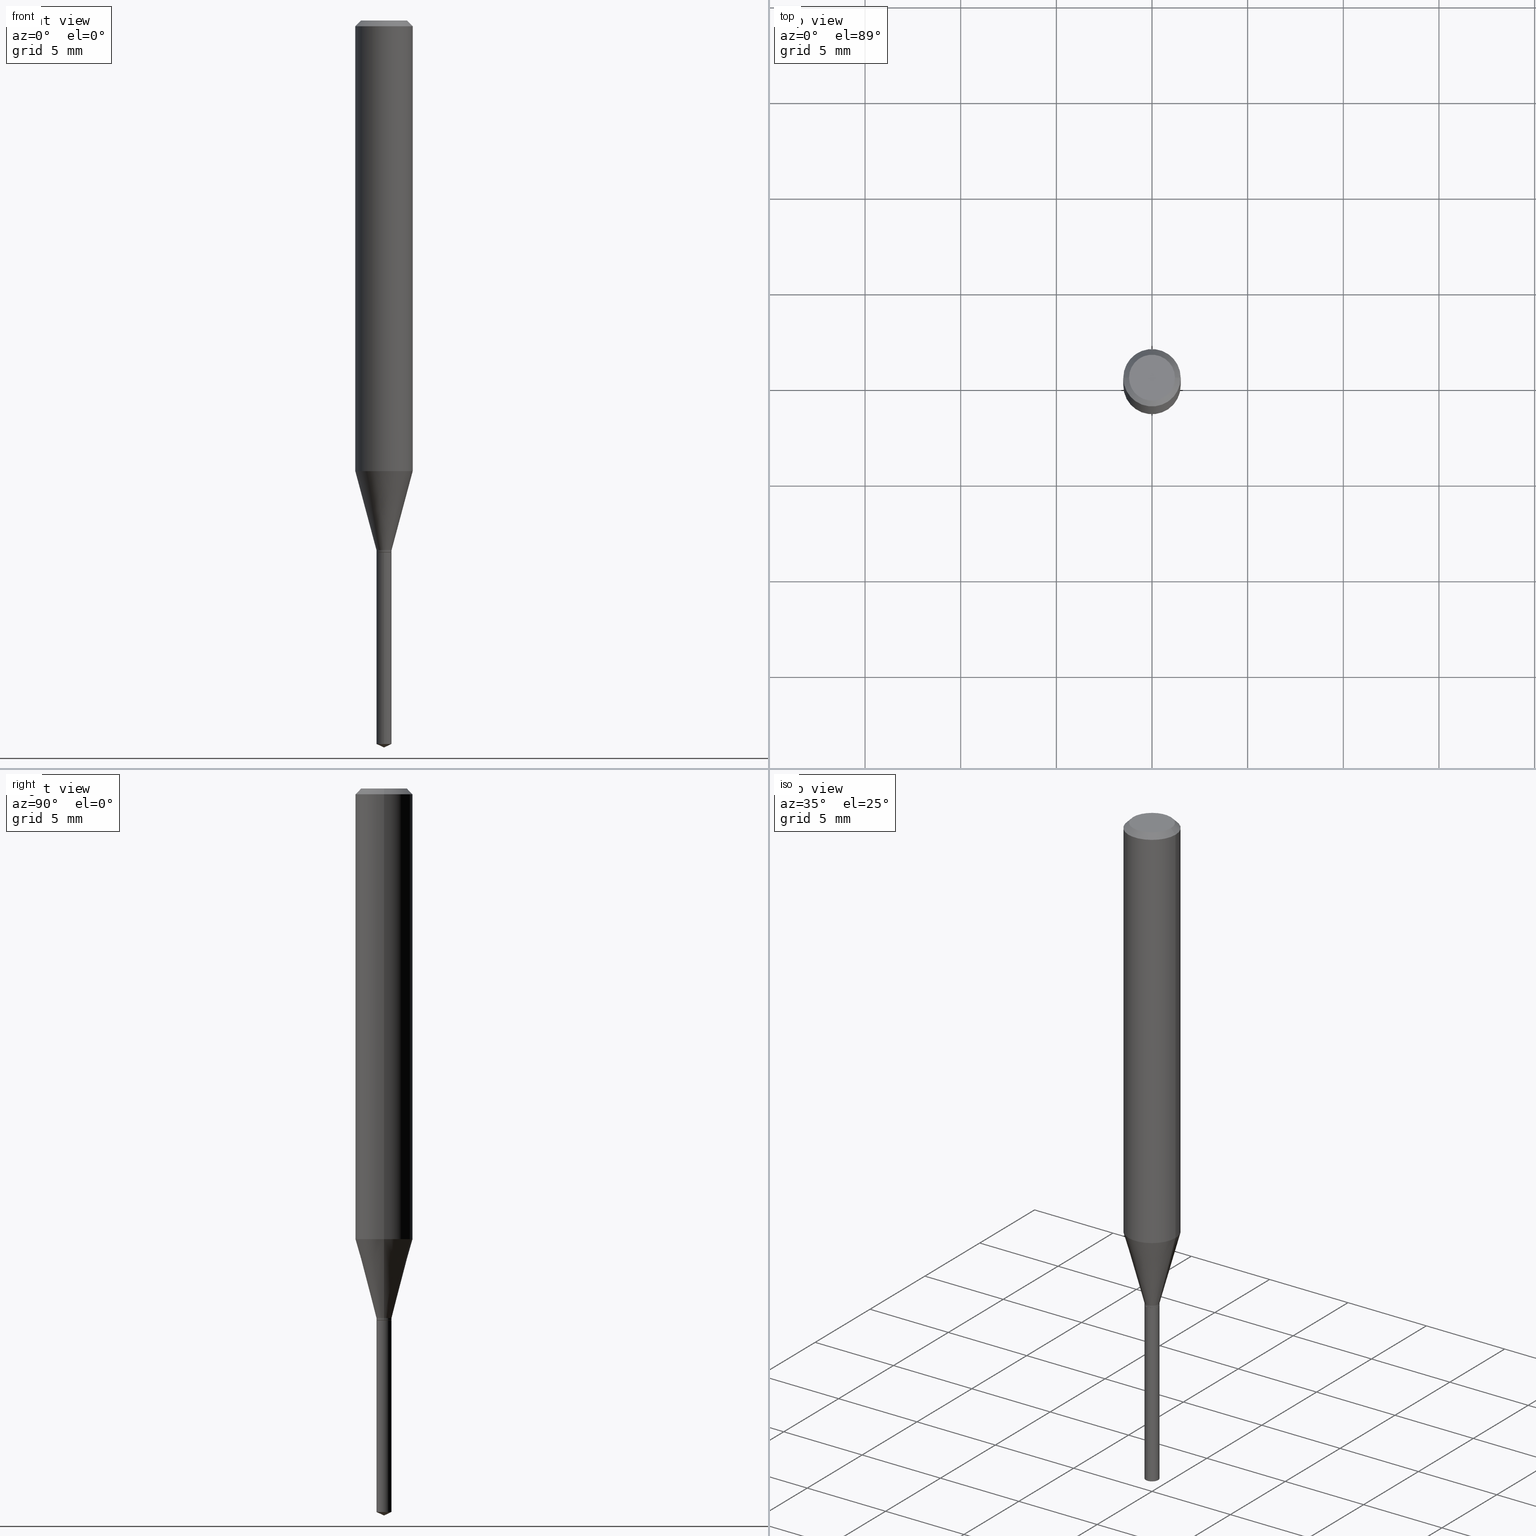
[diagram: canonical four-view strip — front | top / right | iso, engineering-drawing reading convention]
A machine part, canonical four-view strip (front | top / right | iso — engineering-drawing reading convention). The complete STEP part file that produces these views, byte-faithful:
ISO-10303-21;
HEADER;
FILE_DESCRIPTION (( 'STEP AP203' ),
    '1' );
FILE_NAME ('07455.STEP',
    '2024-04-23T21:38:01',
    ( '' ),
    ( '' ),
    'SwSTEP 2.0',
    'SolidWorks 2023',
    '' );
FILE_SCHEMA (( 'CONFIG_CONTROL_DESIGN' ));
ENDSEC;

DATA;
#1 = DIRECTION ( 'NONE',  ( 1.000000000000000000, -6.982962677686261189E-15, 0.000000000000000000 ) ) ;
#2 = CARTESIAN_POINT ( 'NONE',  ( -0.05905000000000005383, 4.195754854663395423E-16, -2.904631170795524694E-30 ) ) ;
#3 = ORIENTED_EDGE ( 'NONE', *, *, #465, .T. ) ;
#4 = CIRCLE ( 'NONE', #17, 0.01554999999999999959 ) ;
#5 = APPROVAL_STATUS ( 'not_yet_approved' ) ;
#6 = EDGE_LOOP ( 'NONE', ( #108, #396 ) ) ;
#7 = DATE_AND_TIME ( #435, #316 ) ;
#8 = DIRECTION ( 'NONE',  ( 1.000000000000000000, -6.982962677686266711E-15, 4.876185090822587894E-29 ) ) ;
#9 = CARTESIAN_POINT ( 'NONE',  ( 1.104893954107223233E-16, 0.01554999999999617626, -1.094499999999999806 ) ) ;
#10 = ADVANCED_FACE ( 'NONE', ( #224 ), #309, .T. ) ;
#11 = CIRCLE ( 'NONE', #239, 0.01504999999999999914 ) ;
#12 = DIRECTION ( 'NONE',  ( 1.000000000000000000, -6.982962677686266711E-15, 4.876176775795935793E-29 ) ) ;
#13 = CARTESIAN_POINT ( 'NONE',  ( 2.676565608369631794E-29, -3.821426325363822773E-15, -1.094499999999999806 ) ) ;
#14 = DIRECTION ( 'NONE',  ( -2.445468806185136597E-29, 3.491481338843145583E-15, 1.000000000000000000 ) ) ;
#15 = CARTESIAN_POINT ( 'NONE',  ( 1.104893954107319992E-16, 0.01554999999999480235, -1.488848915915689686 ) ) ;
#16 = ORIENTED_EDGE ( 'NONE', *, *, #289, .F. ) ;
#17 = AXIS2_PLACEMENT_3D ( 'NONE', #164, #421, #234 ) ;
#18 = CARTESIAN_POINT ( 'NONE',  ( -0.01554999999999999959, -3.701859078472134923E-15, -1.093999999999999861 ) ) ;
#19 = EDGE_LOOP ( 'NONE', ( #474, #64 ) ) ;
#20 = CYLINDRICAL_SURFACE ( 'NONE', #360, 0.01554999999999999959 ) ;
#21 = CARTESIAN_POINT ( 'NONE',  ( 2.676565608369631794E-29, -3.821426325363822773E-15, -1.094499999999999806 ) ) ;
#22 = ORIENTED_EDGE ( 'NONE', *, *, #77, .F. ) ;
#23 = DIRECTION ( 'NONE',  ( -2.445468806185136597E-29, 3.491481338843145583E-15, 1.000000000000000000 ) ) ;
#24 = ADVANCED_FACE ( 'NONE', ( #66 ), #29, .T. ) ;
#25 = DIRECTION ( 'NONE',  ( -2.445468806185136597E-29, 3.491481338843145583E-15, 1.000000000000000000 ) ) ;
#26 = ORIENTED_EDGE ( 'NONE', *, *, #67, .F. ) ;
#27 = LINE ( 'NONE', #413, #350 ) ;
#28 = FACE_OUTER_BOUND ( 'NONE', #284, .T. ) ;
#29 = CONICAL_SURFACE ( 'NONE', #225, 0.05904999999999999832, 0.7853981633974452814 ) ;
#30 = LOCAL_TIME ( 17, 38, 1.000000000000000000, #355 ) ;
#31 =( LENGTH_UNIT ( ) NAMED_UNIT ( * ) SI_UNIT ( $, .METRE. ) );
#32 = DIRECTION ( 'NONE',  ( -1.000000000000000000, 6.982962677686266711E-15, 0.000000000000000000 ) ) ;
#33 = DIRECTION ( 'NONE',  ( -2.445468806185136877E-29, 3.491481338843145188E-15, 1.000000000000000000 ) ) ;
#34 = CC_DESIGN_PERSON_AND_ORGANIZATION_ASSIGNMENT ( #320, #205, ( #222 ) ) ;
#35 = CARTESIAN_POINT ( 'NONE',  ( 2.675342873966538993E-29, -3.819680584694400481E-15, -1.093999999999999861 ) ) ;
#36 = ORIENTED_EDGE ( 'NONE', *, *, #223, .F. ) ;
#37 = AXIS2_PLACEMENT_3D ( 'NONE', #39, #235, #12 ) ;
#38 = CALENDAR_DATE ( 2024, 23, 4 ) ;
#39 = CARTESIAN_POINT ( 'NONE',  ( 0.000000000000000000, 0.000000000000000000, 0.000000000000000000 ) ) ;
#40 = DIRECTION ( 'NONE',  ( 6.982962677686265922E-15, 1.000000000000000000, -3.491479321953280158E-15 ) ) ;
#41 = CARTESIAN_POINT ( 'NONE',  ( -4.260016345039616409E-29, -1.375500648837224634E-14, -1.094500000000000028 ) ) ;
#42 = CC_DESIGN_DATE_AND_TIME_ASSIGNMENT ( #233, #342, ( #490 ) ) ;
#43 = APPROVAL_PERSON_ORGANIZATION ( #152, #317, #192 ) ;
#44 = AXIS2_PLACEMENT_3D ( 'NONE', #41, #351, #318 ) ;
#45 = CARTESIAN_POINT ( 'NONE',  ( -0.01554999999999999959, 1.104893954106955760E-16, -7.648944065346377773E-31 ) ) ;
#46 = AXIS2_PLACEMENT_3D ( 'NONE', #402, #210, #475 ) ;
#47 = CARTESIAN_POINT ( 'NONE',  ( 0.01504999999999999914, -3.926519913663001232E-15, -1.094500000000000028 ) ) ;
#48 = ADVANCED_FACE ( 'NONE', ( #28 ), #218, .T. ) ;
#49 = DIRECTION ( 'NONE',  ( -6.982962677686265922E-15, -1.000000000000000000, 0.000000000000000000 ) ) ;
#50 = APPROVAL_DATE_TIME ( #7, #317 ) ;
#51 = CARTESIAN_POINT ( 'NONE',  ( -0.05904999999999999832, 3.711095515056362547E-16, -0.01181000000000007044 ) ) ;
#52 = VECTOR ( 'NONE', #367, 39.37007874015748143 ) ;
#53 = APPLICATION_CONTEXT ( 'configuration controlled 3d designs of mechanical parts and assemblies' ) ;
#54 = ORIENTED_EDGE ( 'NONE', *, *, #250, .T. ) ;
#55 = AXIS2_PLACEMENT_3D ( 'NONE', #142, #256, #147 ) ;
#56 = ADVANCED_FACE ( 'NONE', ( #115 ), #315, .T. ) ;
#57 = FACE_OUTER_BOUND ( 'NONE', #343, .T. ) ;
#58 = ADVANCED_FACE ( 'NONE', ( #334 ), #257, .T. ) ;
#59 = EDGE_LOOP ( 'NONE', ( #308, #324, #22, #26 ) ) ;
#60 = FACE_OUTER_BOUND ( 'NONE', #255, .T. ) ;
#61 = ORIENTED_EDGE ( 'NONE', *, *, #67, .T. ) ;
#62 = EDGE_CURVE ( 'NONE', #145, #264, #143, .T. ) ;
#63 = DIRECTION ( 'NONE',  ( 1.000000000000000000, -6.982962677686261189E-15, 0.000000000000000000 ) ) ;
#64 = ORIENTED_EDGE ( 'NONE', *, *, #252, .T. ) ;
#65 = APPROVAL_ROLE ( '' ) ;
#66 = FACE_OUTER_BOUND ( 'NONE', #341, .T. ) ;
#67 = EDGE_CURVE ( 'NONE', #368, #213, #76, .T. ) ;
#68 = CALENDAR_DATE ( 2024, 23, 4 ) ;
#69 = VERTEX_POINT ( 'NONE', #111 ) ;
#70 = DIRECTION ( 'NONE',  ( 0.7071067811865453523, -7.319954787623248157E-15, -0.7071067811865496822 ) ) ;
#71 = CARTESIAN_POINT ( 'NONE',  ( 2.888098660104663766E-31, -4.123439461173779647E-17, -0.01181000000000007044 ) ) ;
#72 = AXIS2_PLACEMENT_3D ( 'NONE', #78, #227, #305 ) ;
#73 = AXIS2_PLACEMENT_3D ( 'NONE', #389, #236, #425 ) ;
#74 = AXIS2_PLACEMENT_3D ( 'NONE', #248, #212, #49 ) ;
#75 = APPLICATION_PROTOCOL_DEFINITION ( 'international standard', 'config_control_design', 1994, #53 ) ;
#76 = LINE ( 'NONE', #382, #175 ) ;
#77 = EDGE_CURVE ( 'NONE', #213, #119, #416, .T. ) ;
#78 = CARTESIAN_POINT ( 'NONE',  ( 3.640934136390131342E-29, -5.198287410918146511E-15, -1.488848915915689686 ) ) ;
#79 = ORIENTED_EDGE ( 'NONE', *, *, #431, .T. ) ;
#80 = APPROVAL_STATUS ( 'not_yet_approved' ) ;
#81 = LINE ( 'NONE', #424, #295 ) ;
#82 = EDGE_CURVE ( 'NONE', #337, #141, #274, .T. ) ;
#83 = VECTOR ( 'NONE', #312, 39.37007874015748143 ) ;
#84 = CARTESIAN_POINT ( 'NONE',  ( -0.05904999999999999832, -1.220139003307412078E-15, -0.01181000000000007044 ) ) ;
#85 = EDGE_CURVE ( 'NONE', #145, #403, #322, .T. ) ;
#86 = DIRECTION ( 'NONE',  ( -2.445468806185136597E-29, 3.491481338843145583E-15, 1.000000000000000000 ) ) ;
#87 = CARTESIAN_POINT ( 'NONE',  ( 3.658668015054778287E-29, -5.223602213574301462E-15, -1.496099999999999985 ) ) ;
#88 = CC_DESIGN_APPROVAL ( #373, ( #490 ) ) ;
#89 = CONICAL_SURFACE ( 'NONE', #370, 84.42940631927405093, 1.134464013796314674 ) ;
#90 = DIRECTION ( 'NONE',  ( -2.445468806185136877E-29, 3.491481338843145188E-15, 1.000000000000000000 ) ) ;
#91 = ORGANIZATION ( 'UNSPECIFIED', 'UNSPECIFIED', '' ) ;
#92 = PERSON_AND_ORGANIZATION ( #109, #91 ) ;
#93 = FACE_OUTER_BOUND ( 'NONE', #434, .T. ) ;
#94 = DIRECTION ( 'NONE',  ( -2.445468806185136597E-29, 3.491481338843145583E-15, 1.000000000000000000 ) ) ;
#95 = ORIENTED_EDGE ( 'NONE', *, *, #161, .F. ) ;
#96 = PRODUCT_DEFINITION_SHAPE ( 'NONE', 'NONE',  #490 ) ;
#97 = DATE_TIME_ROLE ( 'classification_date' ) ;
#98 = CARTESIAN_POINT ( 'NONE',  ( 3.658667988020872822E-29, -5.223602213574301462E-15, -1.496099999999999985 ) ) ;
#99 = VECTOR ( 'NONE', #196, 39.37007874015748854 ) ;
#100 = ORIENTED_EDGE ( 'NONE', *, *, #449, .T. ) ;
#101 = CIRCLE ( 'NONE', #74, 0.01554999999999999959 ) ;
#102 = APPROVAL ( #80, 'UNSPECIFIED' ) ;
#103 = CARTESIAN_POINT ( 'NONE',  ( 2.676565608369632355E-29, -3.821426325363822773E-15, -1.094500000000000028 ) ) ;
#104 = ORIENTED_EDGE ( 'NONE', *, *, #313, .T. ) ;
#105 = LINE ( 'NONE', #406, #352 ) ;
#106 = ORIENTED_EDGE ( 'NONE', *, *, #426, .F. ) ;
#107 = PERSON_AND_ORGANIZATION ( #109, #91 ) ;
#108 = ORIENTED_EDGE ( 'NONE', *, *, #426, .T. ) ;
#109 = PERSON ( 'UNSPECIFIED', 'UNSPECIFIED', 'UNSPECIFIED', ('UNSPECIFIED'), ('UNSPECIFIED'), ('UNSPECIFIED') ) ;
#110 = DIRECTION ( 'NONE',  ( -2.445468806185136877E-29, 3.491481338843145188E-15, 1.000000000000000000 ) ) ;
#111 = CARTESIAN_POINT ( 'NONE',  ( -0.01504999999999999914, -3.711840416457816439E-15, -1.094500000000000028 ) ) ;
#112 = APPLICATION_CONTEXT ( 'configuration controlled 3d designs of mechanical parts and assemblies' ) ;
#113 = ORIENTED_EDGE ( 'NONE', *, *, #85, .T. ) ;
#114 = ADVANCED_FACE ( 'NONE', ( #200 ), #467, .F. ) ;
#115 = FACE_OUTER_BOUND ( 'NONE', #302, .T. ) ;
#116 = SECURITY_CLASSIFICATION ( '', '', #468 ) ;
#117 = CIRCLE ( 'NONE', #440, 0.05905000000000010935 ) ;
#118 = CARTESIAN_POINT ( 'NONE',  ( 0.05904999999999999832, -4.463468013801466955E-16, -0.01181000000000007044 ) ) ;
#119 = VERTEX_POINT ( 'NONE', #84 ) ;
#120 = CARTESIAN_POINT ( 'NONE',  ( 0.01554999999999999959, -3.913601432709281317E-15, -1.089799999999999880 ) ) ;
#121 = APPROVAL_DATE_TIME ( #282, #102 ) ;
#122 = CARTESIAN_POINT ( 'NONE',  ( 0.05904999999999999832, -4.535783407291118600E-16, -0.01181000000000007044 ) ) ;
#123 = ADVANCED_FACE ( 'NONE', ( #321 ), #390, .T. ) ;
#124 = DIRECTION ( 'NONE',  ( -2.445470214571802116E-29, 3.491479321953280158E-15, 1.000000000000000000 ) ) ;
#125 = LINE ( 'NONE', #120, #99 ) ;
#126 = DIRECTION ( 'NONE',  ( 1.000000000000000000, -6.982962677686261189E-15, 0.000000000000000000 ) ) ;
#127 = AXIS2_PLACEMENT_3D ( 'NONE', #21, #363, #129 ) ;
#128 = PLANE ( 'NONE',  #137 ) ;
#129 = DIRECTION ( 'NONE',  ( -6.982962677686265922E-15, -1.000000000000000000, 0.000000000000000000 ) ) ;
#130 = ORIENTED_EDGE ( 'NONE', *, *, #460, .T. ) ;
#131 = DIRECTION ( 'NONE',  ( 1.000000000000000000, -6.982962677686266711E-15, 4.876176775795935793E-29 ) ) ;
#132 = ORIENTED_EDGE ( 'NONE', *, *, #412, .F. ) ;
#133 = UNCERTAINTY_MEASURE_WITH_UNIT (LENGTH_MEASURE( 1.000000000000000082E-05 ), #488, 'distance_accuracy_value', 'NONE');
#134 = FACE_OUTER_BOUND ( 'NONE', #327, .T. ) ;
#135 = AXIS2_PLACEMENT_3D ( 'NONE', #451, #375, #385 ) ;
#136 = VERTEX_POINT ( 'NONE', #466 ) ;
#137 = AXIS2_PLACEMENT_3D ( 'NONE', #174, #290, #471 ) ;
#138 = DIRECTION ( 'NONE',  ( -2.445468806185136597E-29, 3.491481338843145583E-15, 1.000000000000000000 ) ) ;
#139 = ORIENTED_EDGE ( 'NONE', *, *, #82, .T. ) ;
#140 = CC_DESIGN_PERSON_AND_ORGANIZATION_ASSIGNMENT ( #92, #189, ( #222 ) ) ;
#141 = VERTEX_POINT ( 'NONE', #314 ) ;
#142 = CARTESIAN_POINT ( 'NONE',  ( 0.000000000000000000, 0.000000000000000000, 0.000000000000000000 ) ) ;
#143 = LINE ( 'NONE', #448, #297 ) ;
#144 = LINE ( 'NONE', #2, #199 ) ;
#145 = VERTEX_POINT ( 'NONE', #154 ) ;
#146 = EDGE_CURVE ( 'NONE', #403, #368, #125, .T. ) ;
#147 = DIRECTION ( 'NONE',  ( 1.000000000000000000, 0.000000000000000000, 0.000000000000000000 ) ) ;
#148 = EDGE_LOOP ( 'NONE', ( #407, #245, #338 ) ) ;
#149 = APPLICATION_PROTOCOL_DEFINITION ( 'international standard', 'config_control_design', 1994, #112 ) ;
#150 = ORIENTED_EDGE ( 'NONE', *, *, #243, .F. ) ;
#151 = CIRCLE ( 'NONE', #215, 0.05904999999999999832 ) ;
#152 = PERSON_AND_ORGANIZATION ( #109, #91 ) ;
#153 = ORIENTED_EDGE ( 'NONE', *, *, #232, .T. ) ;
#154 = CARTESIAN_POINT ( 'NONE',  ( -0.01554999999999999959, -3.701859078472134923E-15, -1.089799999999999880 ) ) ;
#155 = FACE_OUTER_BOUND ( 'NONE', #188, .T. ) ;
#156 = LOCAL_TIME ( 17, 38, 1.000000000000000000, #361 ) ;
#157 = CIRCLE ( 'NONE', #184, 0.01554999999999999959 ) ;
#158 = CIRCLE ( 'NONE', #226, 0.01554999999999999959 ) ;
#159 = DIRECTION ( 'NONE',  ( -2.445470214571802396E-29, 3.491479321953280158E-15, 1.000000000000000000 ) ) ;
#160 = ADVANCED_FACE ( 'NONE', ( #427 ), #275, .F. ) ;
#161 = EDGE_CURVE ( 'NONE', #69, #333, #81, .T. ) ;
#162 = DIRECTION ( 'NONE',  ( -6.982962677686267499E-15, -1.000000000000000000, 3.520397390770465703E-15 ) ) ;
#163 = CALENDAR_DATE ( 2024, 23, 4 ) ;
#164 = CARTESIAN_POINT ( 'NONE',  ( 2.665071904980561815E-29, -3.805016363071259851E-15, -1.089799999999999880 ) ) ;
#165 = AXIS2_PLACEMENT_3D ( 'NONE', #237, #392, #357 ) ;
#166 = EDGE_CURVE ( 'NONE', #310, #337, #201, .T. ) ;
#167 = CARTESIAN_POINT ( 'NONE',  ( 3.658664905062460986E-29, -5.223606628546217219E-15, -1.496099999999999985 ) ) ;
#168 = ORIENTED_EDGE ( 'NONE', *, *, #252, .F. ) ;
#169 = DIRECTION ( 'NONE',  ( 1.000000000000000000, -6.982962677686267499E-15, 0.000000000000000000 ) ) ;
#170 = ORIENTED_EDGE ( 'NONE', *, *, #485, .T. ) ;
#171 = DIRECTION ( 'NONE',  ( 1.000000000000000000, -6.982962677686265922E-15, 4.876176775795935793E-29 ) ) ;
#172 = ORIENTED_EDGE ( 'NONE', *, *, #232, .F. ) ;
#173 = CC_DESIGN_SECURITY_CLASSIFICATION ( #116, ( #222 ) ) ;
#174 = CARTESIAN_POINT ( 'NONE',  ( 4.132873053354867254E-48, -5.900647395337818946E-34, -1.690012582823346072E-19 ) ) ;
#175 = VECTOR ( 'NONE', #33, 39.37007874015748143 ) ;
#176 = ORIENTED_EDGE ( 'NONE', *, *, #449, .F. ) ;
#177 = AXIS2_PLACEMENT_3D ( 'NONE', #229, #447, #263 ) ;
#178 = ADVANCED_FACE ( 'NONE', ( #155 ), #423, .T. ) ;
#179 = CARTESIAN_POINT ( 'NONE',  ( 0.01554999999999999959, -3.928265654332421947E-15, -1.093999999999999861 ) ) ;
#180 = VERTEX_POINT ( 'NONE', #462 ) ;
#181 = DIRECTION ( 'NONE',  ( 1.000000000000000000, -6.982962677686267499E-15, 0.000000000000000000 ) ) ;
#182 = ORIENTED_EDGE ( 'NONE', *, *, #146, .F. ) ;
#183 = CARTESIAN_POINT ( 'NONE',  ( -9.261968845786000133E-28, 1.322362114038720264E-13, 37.87397874015748300 ) ) ;
#184 = AXIS2_PLACEMENT_3D ( 'NONE', #428, #319, #126 ) ;
#185 = CIRCLE ( 'NONE', #177, 0.01504999999999999914 ) ;
#186 = DIRECTION ( 'NONE',  ( -6.982962677686265922E-15, -1.000000000000000000, 0.000000000000000000 ) ) ;
#187 = DIRECTION ( 'NONE',  ( -6.982962677686267499E-15, -1.000000000000000000, 3.520397390770465703E-15 ) ) ;
#188 = EDGE_LOOP ( 'NONE', ( #95, #230, #153, #359 ) ) ;
#189 = PERSON_AND_ORGANIZATION_ROLE ( 'design_supplier' ) ;
#190 = ORIENTED_EDGE ( 'NONE', *, *, #223, .T. ) ;
#191 = CLOSED_SHELL ( 'NONE', ( #261, #58, #202, #339, #160 ) ) ;
#192 = APPROVAL_ROLE ( '' ) ;
#193 = CC_DESIGN_PERSON_AND_ORGANIZATION_ASSIGNMENT ( #107, #259, ( #294 ) ) ;
#194 = CARTESIAN_POINT ( 'NONE',  ( 8.265746106709734507E-48, -1.180129479067563789E-33, -3.380025165646692144E-19 ) ) ;
#195 = DIRECTION ( 'NONE',  ( -0.7071067811864253372, 7.493145998869912398E-15, 0.7071067811866698083 ) ) ;
#196 = DIRECTION ( 'NONE',  ( 0.2588190451025211281, 1.565188264969622954E-15, 0.9659258262890679791 ) ) ;
#197 = EDGE_CURVE ( 'NONE', #333, #145, #271, .T. ) ;
#198 = APPROVAL_PERSON_ORGANIZATION ( #340, #373, #65 ) ;
#199 = VECTOR ( 'NONE', #110, 39.37007874015748143 ) ;
#200 = FACE_OUTER_BOUND ( 'NONE', #366, .T. ) ;
#201 = LINE ( 'NONE', #87, #455 ) ;
#202 = ADVANCED_FACE ( 'NONE', ( #461 ), #89, .T. ) ;
#203 = LINE ( 'NONE', #118, #437 ) ;
#204 = ORIENTED_EDGE ( 'NONE', *, *, #313, .F. ) ;
#205 = PERSON_AND_ORGANIZATION_ROLE ( 'creator' ) ;
#206 = AXIS2_PLACEMENT_3D ( 'NONE', #365, #94, #169 ) ;
#207 = CC_DESIGN_PERSON_AND_ORGANIZATION_ASSIGNMENT ( #276, #242, ( #490 ) ) ;
#208 = FACE_OUTER_BOUND ( 'NONE', #444, .T. ) ;
#209 = ORIENTED_EDGE ( 'NONE', *, *, #393, .F. ) ;
#210 = DIRECTION ( 'NONE',  ( -2.445470214571802116E-29, 3.491479321953280158E-15, 1.000000000000000000 ) ) ;
#211 = ORIENTED_EDGE ( 'NONE', *, *, #161, .T. ) ;
#212 = DIRECTION ( 'NONE',  ( -2.445470214571802116E-29, 3.491479321953280158E-15, 1.000000000000000000 ) ) ;
#213 = VERTEX_POINT ( 'NONE', #122 ) ;
#214 = FACE_OUTER_BOUND ( 'NONE', #19, .T. ) ;
#215 = AXIS2_PLACEMENT_3D ( 'NONE', #394, #14, #273 ) ;
#216 = ORIENTED_EDGE ( 'NONE', *, *, #197, .T. ) ;
#217 = DIRECTION ( 'NONE',  ( -2.445470214571802116E-29, 3.491479321953280158E-15, 1.000000000000000000 ) ) ;
#218 = CYLINDRICAL_SURFACE ( 'NONE', #135, 0.01554999999999999959 ) ;
#219 = DATE_AND_TIME ( #68, #378 ) ;
#220 = ORIENTED_EDGE ( 'NONE', *, *, #383, .F. ) ;
#221 = DIRECTION ( 'NONE',  ( -2.445470214571802396E-29, 3.491479321953280158E-15, 1.000000000000000000 ) ) ;
#222 = PRODUCT_DEFINITION_FORMATION_WITH_SPECIFIED_SOURCE ( 'ANY', '', #294, .NOT_KNOWN. ) ;
#223 = EDGE_CURVE ( 'NONE', #372, #333, #157, .T. ) ;
#224 = FACE_OUTER_BOUND ( 'NONE', #482, .T. ) ;
#225 = AXIS2_PLACEMENT_3D ( 'NONE', #71, #377, #32 ) ;
#226 = AXIS2_PLACEMENT_3D ( 'NONE', #35, #266, #303 ) ;
#227 = DIRECTION ( 'NONE',  ( -2.445470214571802116E-29, 3.491479321953280158E-15, 1.000000000000000000 ) ) ;
#228 = DIRECTION ( 'NONE',  ( -0.2588190451025211281, 5.211531920934547886E-15, 0.9659258262890679791 ) ) ;
#229 = CARTESIAN_POINT ( 'NONE',  ( 2.676565608369632355E-29, -3.821426325363822773E-15, -1.094500000000000028 ) ) ;
#230 = ORIENTED_EDGE ( 'NONE', *, *, #383, .T. ) ;
#231 = MANIFOLD_SOLID_BREP ( 'Body-Move/Copy2[2]', #329 ) ;
#232 = EDGE_CURVE ( 'NONE', #489, #372, #240, .T. ) ;
#233 = DATE_AND_TIME ( #163, #156 ) ;
#234 = DIRECTION ( 'NONE',  ( 1.000000000000000000, -6.982962677686261189E-15, 0.000000000000000000 ) ) ;
#235 = DIRECTION ( 'NONE',  ( -2.445468806185136597E-29, 3.491481338843145583E-15, 1.000000000000000000 ) ) ;
#236 = DIRECTION ( 'NONE',  ( -2.445468806185136597E-29, 3.491481338843145583E-15, 1.000000000000000000 ) ) ;
#237 = CARTESIAN_POINT ( 'NONE',  ( 2.676565608369632355E-29, -3.821426325363822773E-15, -1.094500000000000028 ) ) ;
#238 = VECTOR ( 'NONE', #90, 39.37007874015748143 ) ;
#239 = AXIS2_PLACEMENT_3D ( 'NONE', #469, #23, #278 ) ;
#240 = LINE ( 'NONE', #47, #83 ) ;
#241 = DIRECTION ( 'NONE',  ( -6.328713451373370956E-15, -0.9063077870366487154, 0.4226182617407022724 ) ) ;
#242 = PERSON_AND_ORGANIZATION_ROLE ( 'creator' ) ;
#243 = EDGE_CURVE ( 'NONE', #119, #213, #151, .T. ) ;
#244 = DIRECTION ( 'NONE',  ( -2.445468806185136877E-29, 3.491481338843145188E-15, 1.000000000000000000 ) ) ;
#245 = ORIENTED_EDGE ( 'NONE', *, *, #393, .T. ) ;
#246 = VECTOR ( 'NONE', #159, 39.37007874015748143 ) ;
#247 = LOCAL_TIME ( 17, 38, 1.000000000000000000, #420 ) ;
#248 = CARTESIAN_POINT ( 'NONE',  ( 2.676565608369631794E-29, -3.821426325363822773E-15, -1.094499999999999806 ) ) ;
#249 = ORIENTED_EDGE ( 'NONE', *, *, #82, .F. ) ;
#250 = EDGE_CURVE ( 'NONE', #403, #145, #4, .T. ) ;
#251 = DIRECTION ( 'NONE',  ( -6.982962677686265922E-15, -1.000000000000000000, 0.000000000000000000 ) ) ;
#252 = EDGE_CURVE ( 'NONE', #180, #304, #439, .T. ) ;
#253 = ORIENTED_EDGE ( 'NONE', *, *, #431, .F. ) ;
#254 = CARTESIAN_POINT ( 'NONE',  ( 0.000000000000000000, 0.000000000000000000, 0.000000000000000000 ) ) ;
#255 = EDGE_LOOP ( 'NONE', ( #190, #216, #438, #258 ) ) ;
#256 = DIRECTION ( 'NONE',  ( 0.000000000000000000, 0.000000000000000000, 1.000000000000000000 ) ) ;
#257 = CONICAL_SURFACE ( 'NONE', #379, 84.42940631927405093, 1.134464013796314674 ) ;
#258 = ORIENTED_EDGE ( 'NONE', *, *, #299, .F. ) ;
#259 = PERSON_AND_ORGANIZATION_ROLE ( 'design_owner' ) ;
#260 = DIRECTION ( 'NONE',  ( 2.445468806185136597E-29, -3.491481338843145583E-15, -1.000000000000000000 ) ) ;
#261 = ADVANCED_FACE ( 'NONE', ( #93 ), #323, .T. ) ;
#262 = CARTESIAN_POINT ( 'NONE',  ( 2.888098660104663766E-31, -4.123439461173779647E-17, -0.01181000000000007044 ) ) ;
#263 = DIRECTION ( 'NONE',  ( 1.000000000000000000, -6.982962677686258822E-15, 0.000000000000000000 ) ) ;
#264 = VERTEX_POINT ( 'NONE', #280 ) ;
#265 = CIRCLE ( 'NONE', #285, 0.01554999999999999959 ) ;
#266 = DIRECTION ( 'NONE',  ( -2.445468806185136597E-29, 3.491481338843145583E-15, 1.000000000000000000 ) ) ;
#267 = ORIENTED_EDGE ( 'NONE', *, *, #243, .T. ) ;
#268 = APPROVAL_ROLE ( '' ) ;
#269 = CARTESIAN_POINT ( 'NONE',  ( -9.261968845786000133E-28, 1.322362114038720264E-13, 37.87397874015748300 ) ) ;
#270 = PERSON_AND_ORGANIZATION_ROLE ( 'classification_officer' ) ;
#271 = LINE ( 'NONE', #45, #238 ) ;
#272 = ADVANCED_FACE ( 'NONE', ( #60 ), #20, .T. ) ;
#273 = DIRECTION ( 'NONE',  ( 1.000000000000000000, -6.982962677686266711E-15, 0.000000000000000000 ) ) ;
#274 = LINE ( 'NONE', #9, #246 ) ;
#275 = PLANE ( 'NONE',  #388 ) ;
#276 = PERSON_AND_ORGANIZATION ( #109, #91 ) ;
#277 = AXIS2_PLACEMENT_3D ( 'NONE', #194, #347, #8 ) ;
#278 = DIRECTION ( 'NONE',  ( 1.000000000000000000, -6.982962677686258822E-15, 0.000000000000000000 ) ) ;
#279 = CC_DESIGN_DATE_AND_TIME_ASSIGNMENT ( #429, #97, ( #116 ) ) ;
#280 = CARTESIAN_POINT ( 'NONE',  ( -0.05905000000000010935, -2.818619097469426315E-15, -0.9274557898707536108 ) ) ;
#281 = ORIENTED_EDGE ( 'NONE', *, *, #146, .T. ) ;
#282 = DATE_AND_TIME ( #432, #247 ) ;
#283 = LINE ( 'NONE', #51, #52 ) ;
#284 = EDGE_LOOP ( 'NONE', ( #332, #3, #414, #483 ) ) ;
#285 = AXIS2_PLACEMENT_3D ( 'NONE', #301, #217, #186 ) ;
#286 = CONICAL_SURFACE ( 'NONE', #415, 0.01504999999999999914, 0.7853981633972754173 ) ;
#287 = DIRECTION ( 'NONE',  ( 1.000000000000000000, -6.982962677686258822E-15, 0.000000000000000000 ) ) ;
#288 = ORIENTED_EDGE ( 'NONE', *, *, #422, .F. ) ;
#289 = EDGE_CURVE ( 'NONE', #368, #264, #344, .T. ) ;
#290 = DIRECTION ( 'NONE',  ( 2.438088387897960049E-29, -3.491481338843145188E-15, -1.000000000000000000 ) ) ;
#291 = EDGE_LOOP ( 'NONE', ( #209, #477, #253 ) ) ;
#292 = DIRECTION ( 'NONE',  ( 1.000000000000000000, -6.982962677686266711E-15, 4.876185090822587894E-29 ) ) ;
#293 = ORIENTED_EDGE ( 'NONE', *, *, #460, .F. ) ;
#294 = PRODUCT ( '07455', '07455', '', ( #336 ) ) ;
#295 = VECTOR ( 'NONE', #195, 39.37007874015748143 ) ;
#296 = CARTESIAN_POINT ( 'NONE',  ( 8.265746106709734507E-48, -1.180129479067563789E-33, -3.380025165646692144E-19 ) ) ;
#297 = VECTOR ( 'NONE', #228, 39.37007874015748854 ) ;
#298 = DIRECTION ( 'NONE',  ( -2.445468806185136597E-29, 3.491481338843145583E-15, 1.000000000000000000 ) ) ;
#299 = EDGE_CURVE ( 'NONE', #372, #403, #105, .T. ) ;
#300 = DIMENSIONAL_EXPONENTS ( 1.000000000000000000, 0.000000000000000000, 0.000000000000000000, 0.000000000000000000, 0.000000000000000000, 0.000000000000000000, 0.000000000000000000 ) ;
#301 = CARTESIAN_POINT ( 'NONE',  ( 2.676565608369631794E-29, -3.821426325363822773E-15, -1.094499999999999806 ) ) ;
#302 = EDGE_LOOP ( 'NONE', ( #442, #113, #281, #293 ) ) ;
#303 = DIRECTION ( 'NONE',  ( 1.000000000000000000, -6.982962677686261189E-15, 0.000000000000000000 ) ) ;
#304 = VERTEX_POINT ( 'NONE', #481 ) ;
#305 = DIRECTION ( 'NONE',  ( -6.982962677686265922E-15, -1.000000000000000000, 0.000000000000000000 ) ) ;
#306 = AXIS2_PLACEMENT_3D ( 'NONE', #296, #25, #292 ) ;
#307 = ADVANCED_FACE ( 'NONE', ( #399 ), #358, .T. ) ;
#308 = ORIENTED_EDGE ( 'NONE', *, *, #289, .T. ) ;
#309 = CONICAL_SURFACE ( 'NONE', #487, 0.05904999999999999832, 0.7853981633974452814 ) ;
#310 = VERTEX_POINT ( 'NONE', #98 ) ;
#311 = ADVANCED_BREP_SHAPE_REPRESENTATION ( '07455', ( #391, #231, #55 ), #330 ) ;
#312 = DIRECTION ( 'NONE',  ( 0.7071067811864253372, -2.468850131080976739E-15, 0.7071067811866698083 ) ) ;
#313 = EDGE_CURVE ( 'NONE', #304, #119, #283, .T. ) ;
#314 = CARTESIAN_POINT ( 'NONE',  ( 1.104893954107320238E-16, 0.01554999999999617626, -1.094499999999999806 ) ) ;
#315 = CONICAL_SURFACE ( 'NONE', #470, 0.01554999999999999959, 0.2617993877991498519 ) ;
#316 = LOCAL_TIME ( 17, 38, 1.000000000000000000, #345 ) ;
#317 = APPROVAL ( #5, 'UNSPECIFIED' ) ;
#318 = DIRECTION ( 'NONE',  ( 1.000000000000000000, -6.982962677686265922E-15, 4.876176775795935793E-29 ) ) ;
#319 = DIRECTION ( 'NONE',  ( -2.445468806185136597E-29, 3.491481338843145583E-15, 1.000000000000000000 ) ) ;
#320 = PERSON_AND_ORGANIZATION ( #109, #91 ) ;
#321 = FACE_OUTER_BOUND ( 'NONE', #453, .T. ) ;
#322 = CIRCLE ( 'NONE', #73, 0.01554999999999999959 ) ;
#323 = CYLINDRICAL_SURFACE ( 'NONE', #127, 0.01554999999999999959 ) ;
#324 = ORIENTED_EDGE ( 'NONE', *, *, #464, .T. ) ;
#325 = CARTESIAN_POINT ( 'NONE',  ( 2.665071904980561815E-29, -3.805016363071259851E-15, -1.089799999999999880 ) ) ;
#326 = CARTESIAN_POINT ( 'NONE',  ( 0.000000000000000000, 0.000000000000000000, 0.000000000000000000 ) ) ;
#327 = EDGE_LOOP ( 'NONE', ( #100, #211, #36, #172 ) ) ;
#328 = CC_DESIGN_APPROVAL ( #317, ( #116 ) ) ;
#329 = CLOSED_SHELL ( 'NONE', ( #349, #10, #307, #362, #272, #48, #56, #123, #24, #346, #114, #178 ) ) ;
#330 =( GEOMETRIC_REPRESENTATION_CONTEXT ( 3 ) GLOBAL_UNCERTAINTY_ASSIGNED_CONTEXT ( ( #133 ) ) GLOBAL_UNIT_ASSIGNED_CONTEXT ( ( #488, #456, #452 ) ) REPRESENTATION_CONTEXT ( 'NONE', 'WORKASPACE' ) );
#331 = CYLINDRICAL_SURFACE ( 'NONE', #46, 0.01554999999999999959 ) ;
#332 = ORIENTED_EDGE ( 'NONE', *, *, #197, .F. ) ;
#333 = VERTEX_POINT ( 'NONE', #18 ) ;
#334 = FACE_OUTER_BOUND ( 'NONE', #291, .T. ) ;
#335 = AXIS2_PLACEMENT_3D ( 'NONE', #326, #138, #131 ) ;
#336 = MECHANICAL_CONTEXT ( 'NONE', #53, 'mechanical' ) ;
#337 = VERTEX_POINT ( 'NONE', #15 ) ;
#338 = ORIENTED_EDGE ( 'NONE', *, *, #398, .F. ) ;
#339 = ADVANCED_FACE ( 'NONE', ( #208 ), #331, .T. ) ;
#340 = PERSON_AND_ORGANIZATION ( #109, #91 ) ;
#341 = EDGE_LOOP ( 'NONE', ( #288, #458, #104, #267 ) ) ;
#342 = DATE_TIME_ROLE ( 'creation_date' ) ;
#343 = EDGE_LOOP ( 'NONE', ( #54, #446, #16, #182 ) ) ;
#344 = CIRCLE ( 'NONE', #206, 0.05905000000000010935 ) ;
#345 = COORDINATED_UNIVERSAL_TIME_OFFSET ( 5, 0, .BEHIND. ) ;
#346 = ADVANCED_FACE ( 'NONE', ( #214 ), #128, .F. ) ;
#347 = DIRECTION ( 'NONE',  ( -2.445468806185136597E-29, 3.491481338843145583E-15, 1.000000000000000000 ) ) ;
#348 = DIRECTION ( 'NONE',  ( 6.439704144417026409E-15, 0.9063077870366516020, 0.4226182617406958331 ) ) ;
#349 = ADVANCED_FACE ( 'NONE', ( #134 ), #286, .T. ) ;
#350 = VECTOR ( 'NONE', #221, 39.37007874015748143 ) ;
#351 = DIRECTION ( 'NONE',  ( -2.438088387897960049E-29, 3.491481338843145188E-15, 1.000000000000000000 ) ) ;
#352 = VECTOR ( 'NONE', #244, 39.37007874015748143 ) ;
#353 = CIRCLE ( 'NONE', #72, 0.01554999999999999959 ) ;
#354 = DIRECTION ( 'NONE',  ( 2.445470214571801836E-29, -3.491479321953280158E-15, -1.000000000000000000 ) ) ;
#355 = COORDINATED_UNIVERSAL_TIME_OFFSET ( 5, 0, .BEHIND. ) ;
#356 = PRODUCT_RELATED_PRODUCT_CATEGORY ( 'detail', '', ( #294 ) ) ;
#357 = DIRECTION ( 'NONE',  ( 1.000000000000000000, -6.982962677686258822E-15, 0.000000000000000000 ) ) ;
#358 = CYLINDRICAL_SURFACE ( 'NONE', #335, 0.05905000000000005383 ) ;
#359 = ORIENTED_EDGE ( 'NONE', *, *, #465, .F. ) ;
#360 = AXIS2_PLACEMENT_3D ( 'NONE', #254, #433, #171 ) ;
#361 = COORDINATED_UNIVERSAL_TIME_OFFSET ( 5, 0, .BEHIND. ) ;
#362 = ADVANCED_FACE ( 'NONE', ( #57 ), #369, .T. ) ;
#363 = DIRECTION ( 'NONE',  ( -2.445470214571802116E-29, 3.491479321953280158E-15, 1.000000000000000000 ) ) ;
#364 = ORIENTED_EDGE ( 'NONE', *, *, #485, .F. ) ;
#365 = CARTESIAN_POINT ( 'NONE',  ( 2.268064203244724858E-29, -3.238194582935765808E-15, -0.9274557898707536108 ) ) ;
#366 = EDGE_LOOP ( 'NONE', ( #176, #220 ) ) ;
#367 = DIRECTION ( 'NONE',  ( -0.7071067811865453523, 2.468850131082234184E-15, -0.7071067811865496822 ) ) ;
#368 = VERTEX_POINT ( 'NONE', #371 ) ;
#369 = CONICAL_SURFACE ( 'NONE', #417, 0.01554999999999999959, 0.2617993877991498519 ) ;
#370 = AXIS2_PLACEMENT_3D ( 'NONE', #269, #124, #162 ) ;
#371 = CARTESIAN_POINT ( 'NONE',  ( 0.05905000000000010935, -3.650538529053141123E-15, -0.9274557898707536108 ) ) ;
#372 = VERTEX_POINT ( 'NONE', #179 ) ;
#373 = APPROVAL ( #408, 'UNSPECIFIED' ) ;
#374 = CARTESIAN_POINT ( 'NONE',  ( 2.268064203244724858E-29, -3.238194582935765808E-15, -0.9274557898707536108 ) ) ;
#375 = DIRECTION ( 'NONE',  ( -2.445468806185136597E-29, 3.491481338843145583E-15, 1.000000000000000000 ) ) ;
#376 = APPROVAL_DATE_TIME ( #219, #373 ) ;
#377 = DIRECTION ( 'NONE',  ( 2.445468806185136597E-29, -3.491481338843145583E-15, -1.000000000000000000 ) ) ;
#378 = LOCAL_TIME ( 17, 38, 1.000000000000000000, #410 ) ;
#379 = AXIS2_PLACEMENT_3D ( 'NONE', #183, #486, #187 ) ;
#380 = VECTOR ( 'NONE', #241, 39.37007874015748143 ) ;
#381 = CARTESIAN_POINT ( 'NONE',  ( 2.888098660104663766E-31, -4.123439461173779647E-17, -0.01181000000000007044 ) ) ;
#382 = CARTESIAN_POINT ( 'NONE',  ( 0.05905000000000005383, -4.123439461173744271E-16, 2.879382386107502672E-30 ) ) ;
#383 = EDGE_CURVE ( 'NONE', #69, #489, #11, .T. ) ;
#384 = LENGTH_MEASURE_WITH_UNIT ( LENGTH_MEASURE( 0.02539999999999999897 ), #31 );
#385 = DIRECTION ( 'NONE',  ( 1.000000000000000000, -6.982962677686265922E-15, 4.876176775795935793E-29 ) ) ;
#386 = PERSON_AND_ORGANIZATION ( #109, #91 ) ;
#387 = DIRECTION ( 'NONE',  ( 1.000000000000000000, -6.982962677686266711E-15, 0.000000000000000000 ) ) ;
#388 = AXIS2_PLACEMENT_3D ( 'NONE', #13, #354, #40 ) ;
#389 = CARTESIAN_POINT ( 'NONE',  ( 2.665071904980561815E-29, -3.805016363071259851E-15, -1.089799999999999880 ) ) ;
#390 = CYLINDRICAL_SURFACE ( 'NONE', #37, 0.05905000000000005383 ) ;
#391 = MANIFOLD_SOLID_BREP ( 'Body-Move/Copy2[1]', #191 ) ;
#392 = DIRECTION ( 'NONE',  ( -2.445468806185136597E-29, 3.491481338843145583E-15, 1.000000000000000000 ) ) ;
#393 = EDGE_CURVE ( 'NONE', #310, #136, #430, .T. ) ;
#394 = CARTESIAN_POINT ( 'NONE',  ( 2.888098660104663766E-31, -4.123439461173779647E-17, -0.01181000000000007044 ) ) ;
#395 = CARTESIAN_POINT ( 'NONE',  ( 3.640934136390131342E-29, -5.198287410918146511E-15, -1.488848915915689686 ) ) ;
#396 = ORIENTED_EDGE ( 'NONE', *, *, #412, .T. ) ;
#397 = PERSON_AND_ORGANIZATION ( #109, #91 ) ;
#398 = EDGE_CURVE ( 'NONE', #337, #136, #454, .T. ) ;
#399 = FACE_OUTER_BOUND ( 'NONE', #59, .T. ) ;
#400 = ORIENTED_EDGE ( 'NONE', *, *, #77, .T. ) ;
#401 = CC_DESIGN_PERSON_AND_ORGANIZATION_ASSIGNMENT ( #386, #270, ( #116 ) ) ;
#402 = CARTESIAN_POINT ( 'NONE',  ( 2.676565608369631794E-29, -3.821426325363822773E-15, -1.094499999999999806 ) ) ;
#403 = VERTEX_POINT ( 'NONE', #473 ) ;
#404 = CARTESIAN_POINT ( 'NONE',  ( -1.085850696379946697E-16, -0.01555000000000382118, -1.094499999999999806 ) ) ;
#405 = VERTEX_POINT ( 'NONE', #404 ) ;
#406 = CARTESIAN_POINT ( 'NONE',  ( 0.01554999999999999959, -1.085850696380214293E-16, 7.582454886362679997E-31 ) ) ;
#407 = ORIENTED_EDGE ( 'NONE', *, *, #166, .F. ) ;
#408 = APPROVAL_STATUS ( 'not_yet_approved' ) ;
#409 = ORIENTED_EDGE ( 'NONE', *, *, #398, .T. ) ;
#410 = COORDINATED_UNIVERSAL_TIME_OFFSET ( 5, 0, .BEHIND. ) ;
#411 = DIRECTION ( 'NONE',  ( -1.000000000000000000, 6.982962677686266711E-15, 0.000000000000000000 ) ) ;
#412 = EDGE_CURVE ( 'NONE', #141, #405, #101, .T. ) ;
#413 = CARTESIAN_POINT ( 'NONE',  ( -1.085850696379946697E-16, -0.01555000000000382118, -1.094499999999999806 ) ) ;
#414 = ORIENTED_EDGE ( 'NONE', *, *, #299, .T. ) ;
#415 = AXIS2_PLACEMENT_3D ( 'NONE', #103, #443, #287 ) ;
#416 = CIRCLE ( 'NONE', #478, 0.05904999999999999832 ) ;
#417 = AXIS2_PLACEMENT_3D ( 'NONE', #325, #441, #63 ) ;
#418 = CARTESIAN_POINT ( 'NONE',  ( 2.665071904980561815E-29, -3.805016363071259851E-15, -1.089799999999999880 ) ) ;
#419 = ORIENTED_EDGE ( 'NONE', *, *, #464, .F. ) ;
#420 = COORDINATED_UNIVERSAL_TIME_OFFSET ( 5, 0, .BEHIND. ) ;
#421 = DIRECTION ( 'NONE',  ( -2.445468806185136597E-29, 3.491481338843145583E-15, 1.000000000000000000 ) ) ;
#422 = EDGE_CURVE ( 'NONE', #180, #213, #203, .T. ) ;
#423 = CONICAL_SURFACE ( 'NONE', #165, 0.01504999999999999914, 0.7853981633972754173 ) ;
#424 = CARTESIAN_POINT ( 'NONE',  ( -0.01504999999999999914, -3.714489643631927640E-15, -1.094500000000000028 ) ) ;
#425 = DIRECTION ( 'NONE',  ( 1.000000000000000000, -6.982962677686261189E-15, 0.000000000000000000 ) ) ;
#426 = EDGE_CURVE ( 'NONE', #405, #141, #265, .T. ) ;
#427 = FACE_OUTER_BOUND ( 'NONE', #6, .T. ) ;
#428 = CARTESIAN_POINT ( 'NONE',  ( 2.675342873966538993E-29, -3.819680584694400481E-15, -1.093999999999999861 ) ) ;
#429 = DATE_AND_TIME ( #38, #30 ) ;
#430 = LINE ( 'NONE', #167, #380 ) ;
#431 = EDGE_CURVE ( 'NONE', #136, #337, #353, .T. ) ;
#432 = CALENDAR_DATE ( 2024, 23, 4 ) ;
#433 = DIRECTION ( 'NONE',  ( -2.445468806185136597E-29, 3.491481338843145583E-15, 1.000000000000000000 ) ) ;
#434 = EDGE_LOOP ( 'NONE', ( #79, #139, #106, #364 ) ) ;
#435 = CALENDAR_DATE ( 2024, 23, 4 ) ;
#436 = DIRECTION ( 'NONE',  ( -2.445470214571802116E-29, 3.491479321953280158E-15, 1.000000000000000000 ) ) ;
#437 = VECTOR ( 'NONE', #70, 39.37007874015748143 ) ;
#438 = ORIENTED_EDGE ( 'NONE', *, *, #250, .F. ) ;
#439 = CIRCLE ( 'NONE', #277, 0.04724000000000000421 ) ;
#440 = AXIS2_PLACEMENT_3D ( 'NONE', #374, #445, #181 ) ;
#441 = DIRECTION ( 'NONE',  ( -2.445468806185136597E-29, 3.491481338843145583E-15, 1.000000000000000000 ) ) ;
#442 = ORIENTED_EDGE ( 'NONE', *, *, #62, .F. ) ;
#443 = DIRECTION ( 'NONE',  ( -2.445468806185136597E-29, 3.491481338843145583E-15, 1.000000000000000000 ) ) ;
#444 = EDGE_LOOP ( 'NONE', ( #249, #409, #170, #132 ) ) ;
#445 = DIRECTION ( 'NONE',  ( -2.445468806185136597E-29, 3.491481338843145583E-15, 1.000000000000000000 ) ) ;
#446 = ORIENTED_EDGE ( 'NONE', *, *, #62, .T. ) ;
#447 = DIRECTION ( 'NONE',  ( -2.445468806185136597E-29, 3.491481338843145583E-15, 1.000000000000000000 ) ) ;
#448 = CARTESIAN_POINT ( 'NONE',  ( -0.01554999999999999959, -3.694526967660564608E-15, -1.089799999999999880 ) ) ;
#449 = EDGE_CURVE ( 'NONE', #489, #69, #185, .T. ) ;
#450 = CARTESIAN_POINT ( 'NONE',  ( 0.01504999999999999914, -3.926519913663001232E-15, -1.094500000000000028 ) ) ;
#451 = CARTESIAN_POINT ( 'NONE',  ( 0.000000000000000000, 0.000000000000000000, 0.000000000000000000 ) ) ;
#452 =( NAMED_UNIT ( * ) SI_UNIT ( $, .STERADIAN. ) SOLID_ANGLE_UNIT ( ) );
#453 = EDGE_LOOP ( 'NONE', ( #419, #130, #61, #150 ) ) ;
#454 = CIRCLE ( 'NONE', #479, 0.01554999999999999959 ) ;
#455 = VECTOR ( 'NONE', #348, 39.37007874015748143 ) ;
#456 =( NAMED_UNIT ( * ) PLANE_ANGLE_UNIT ( ) SI_UNIT ( $, .RADIAN. ) );
#457 = CIRCLE ( 'NONE', #306, 0.04724000000000000421 ) ;
#458 = ORIENTED_EDGE ( 'NONE', *, *, #480, .F. ) ;
#459 = ORIENTED_EDGE ( 'NONE', *, *, #422, .T. ) ;
#460 = EDGE_CURVE ( 'NONE', #264, #368, #117, .T. ) ;
#461 = FACE_OUTER_BOUND ( 'NONE', #148, .T. ) ;
#462 = CARTESIAN_POINT ( 'NONE',  ( 0.04724000000000000421, -3.852183633974369345E-16, -3.380025165621689721E-19 ) ) ;
#463 = APPROVAL_PERSON_ORGANIZATION ( #397, #102, #268 ) ;
#464 = EDGE_CURVE ( 'NONE', #264, #119, #144, .T. ) ;
#465 = EDGE_CURVE ( 'NONE', #333, #372, #158, .T. ) ;
#466 = CARTESIAN_POINT ( 'NONE',  ( -1.085850696379850431E-16, -0.01555000000000520202, -1.488848915915689686 ) ) ;
#467 = PLANE ( 'NONE',  #44 ) ;
#468 = SECURITY_CLASSIFICATION_LEVEL ( 'unclassified' ) ;
#469 = CARTESIAN_POINT ( 'NONE',  ( 2.676565608369632355E-29, -3.821426325363822773E-15, -1.094500000000000028 ) ) ;
#470 = AXIS2_PLACEMENT_3D ( 'NONE', #418, #298, #1 ) ;
#471 = DIRECTION ( 'NONE',  ( -1.000000000000000000, 6.982962677686265922E-15, -4.876176775795935793E-29 ) ) ;
#472 = SHAPE_DEFINITION_REPRESENTATION ( #96, #311 ) ;
#473 = CARTESIAN_POINT ( 'NONE',  ( 0.01554999999999999959, -3.913601432709281317E-15, -1.089799999999999880 ) ) ;
#474 = ORIENTED_EDGE ( 'NONE', *, *, #480, .T. ) ;
#475 = DIRECTION ( 'NONE',  ( -6.982962677686265922E-15, -1.000000000000000000, 0.000000000000000000 ) ) ;
#476 = CC_DESIGN_APPROVAL ( #102, ( #222 ) ) ;
#477 = ORIENTED_EDGE ( 'NONE', *, *, #166, .T. ) ;
#478 = AXIS2_PLACEMENT_3D ( 'NONE', #262, #86, #387 ) ;
#479 = AXIS2_PLACEMENT_3D ( 'NONE', #395, #436, #251 ) ;
#480 = EDGE_CURVE ( 'NONE', #304, #180, #457, .T. ) ;
#481 = CARTESIAN_POINT ( 'NONE',  ( -0.04724000000000000421, 3.504923541997677355E-16, -3.380025165670481712E-19 ) ) ;
#482 = EDGE_LOOP ( 'NONE', ( #168, #459, #400, #204 ) ) ;
#483 = ORIENTED_EDGE ( 'NONE', *, *, #85, .F. ) ;
#484 = DESIGN_CONTEXT ( 'detailed design', #112, 'design' ) ;
#485 = EDGE_CURVE ( 'NONE', #136, #405, #27, .T. ) ;
#486 = DIRECTION ( 'NONE',  ( -2.445470214571802116E-29, 3.491479321953280158E-15, 1.000000000000000000 ) ) ;
#487 = AXIS2_PLACEMENT_3D ( 'NONE', #381, #260, #411 ) ;
#488 =( CONVERSION_BASED_UNIT ( 'INCH', #384 ) LENGTH_UNIT ( ) NAMED_UNIT ( #300 ) );
#489 = VERTEX_POINT ( 'NONE', #450 ) ;
#490 = PRODUCT_DEFINITION ( 'UNKNOWN', '', #222, #484 ) ;
ENDSEC;
END-ISO-10303-21;
